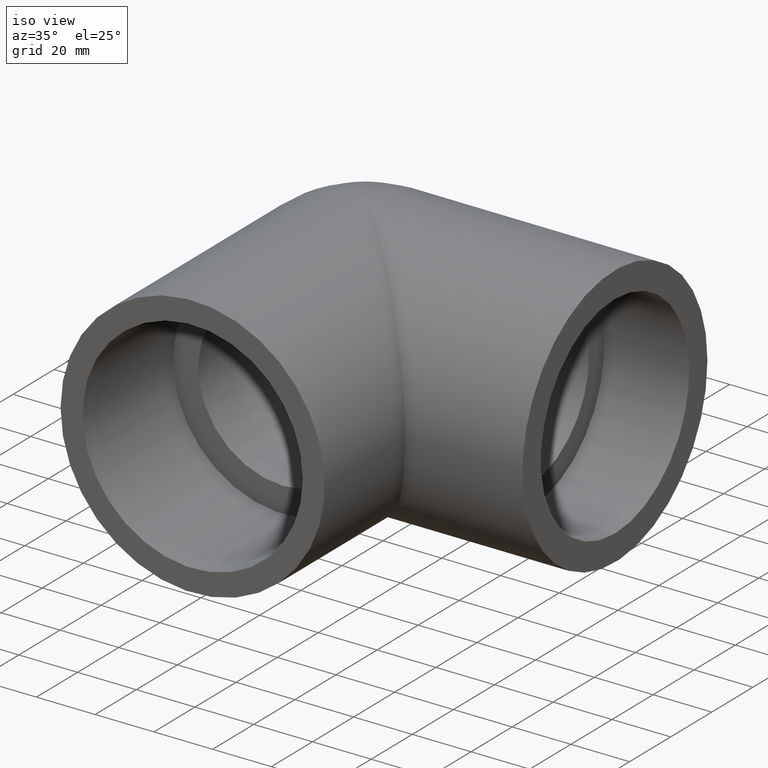
[diagram: clean part render]
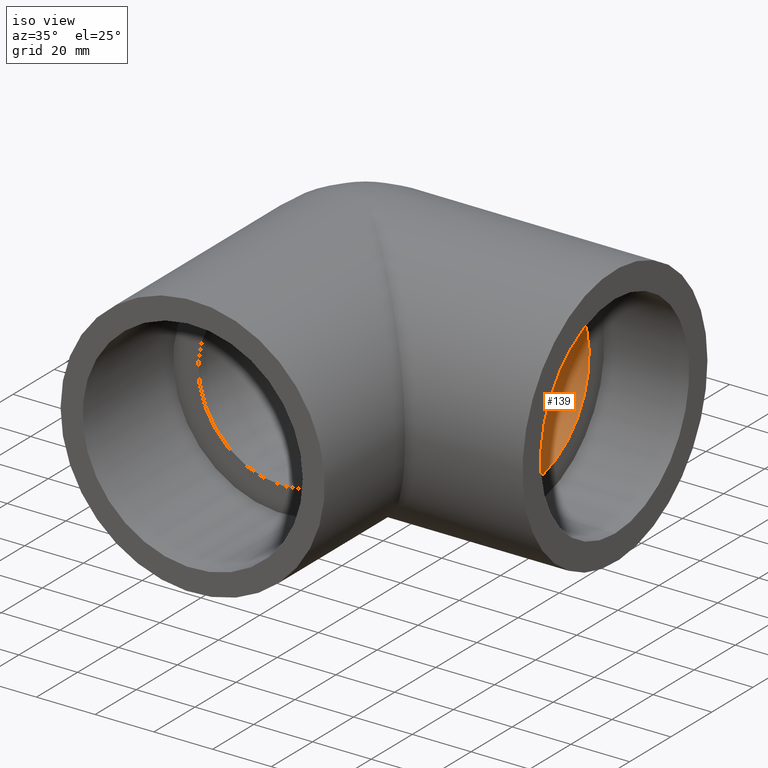
[diagram: same view with one face highlighted and labeled with its STEP entity id]
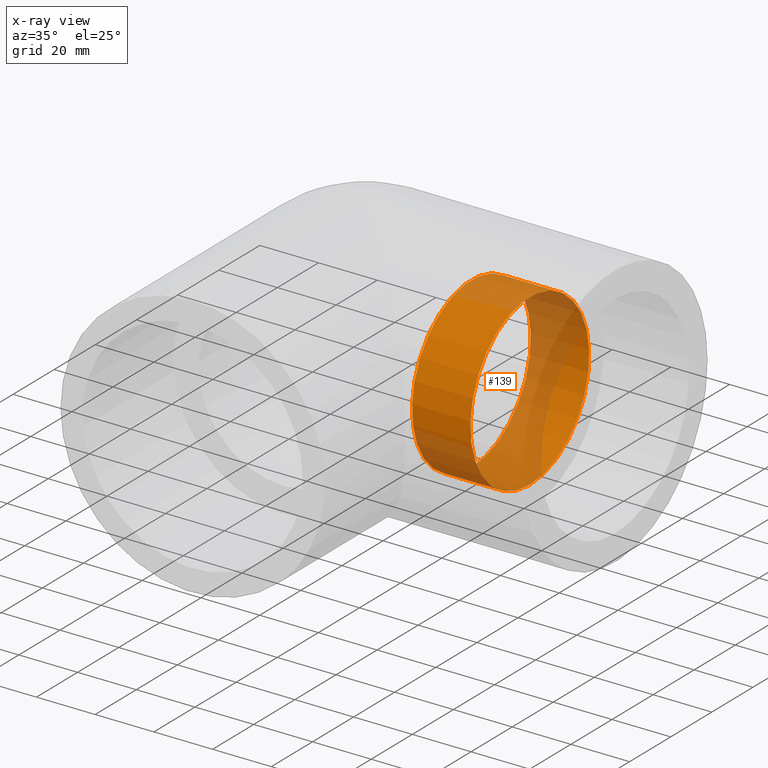
[diagram: x-ray of the same camera — body ghosted, the highlighted face saturated]
A machine part, iso view. The second image highlights one B-rep face of the part: STEP entity #139.
The next image is the same camera in x-ray: the body ghosted, the highlighted face saturated — about 51% of this face is hidden behind the body in this view.
In plain terms, the highlighted cylindrical surface (bore or boss wall) has radius 28.8904 mm, axis along (-1, -0, 0).
Its self-contained STEP definition (entity closure, byte-faithful):
#24=FACE_BOUND('',#50,.T.);
#35=FACE_OUTER_BOUND('',#49,.T.);
#49=EDGE_LOOP('',(#109));
#50=EDGE_LOOP('',(#110));
#70=CIRCLE('',#155,28.8904);
#71=CIRCLE('',#157,28.8904);
#82=VERTEX_POINT('',#235);
#83=VERTEX_POINT('',#238);
#94=EDGE_CURVE('',#82,#82,#70,.T.);
#95=EDGE_CURVE('',#83,#83,#71,.T.);
#109=ORIENTED_EDGE('',*,*,#94,.T.);
#110=ORIENTED_EDGE('',*,*,#95,.F.);
#132=CYLINDRICAL_SURFACE('',#156,28.8904);
#139=ADVANCED_FACE('',(#35,#24),#132,.F.);
#155=AXIS2_PLACEMENT_3D('',#236,#186,#187);
#156=AXIS2_PLACEMENT_3D('',#237,#188,#189);
#157=AXIS2_PLACEMENT_3D('',#239,#190,#191);
#186=DIRECTION('center_axis',(-1.,0.,0.));
#187=DIRECTION('ref_axis',(0.,0.,1.));
#188=DIRECTION('center_axis',(-1.,-2.23674454524029E-16,0.));
#189=DIRECTION('ref_axis',(0.,0.,1.));
#190=DIRECTION('center_axis',(-1.,0.,0.));
#191=DIRECTION('ref_axis',(0.,0.,1.));
#235=CARTESIAN_POINT('',(36.113,-9.10160288510693E-16,-28.8904));
#236=CARTESIAN_POINT('Origin',(36.113,-4.44821387711936E-15,0.));
#237=CARTESIAN_POINT('Origin',(56.,0.,0.));
#238=CARTESIAN_POINT('',(56.,3.53805358860867E-15,-28.8904));
#239=CARTESIAN_POINT('Origin',(56.,-4.10155149031774E-47,0.));